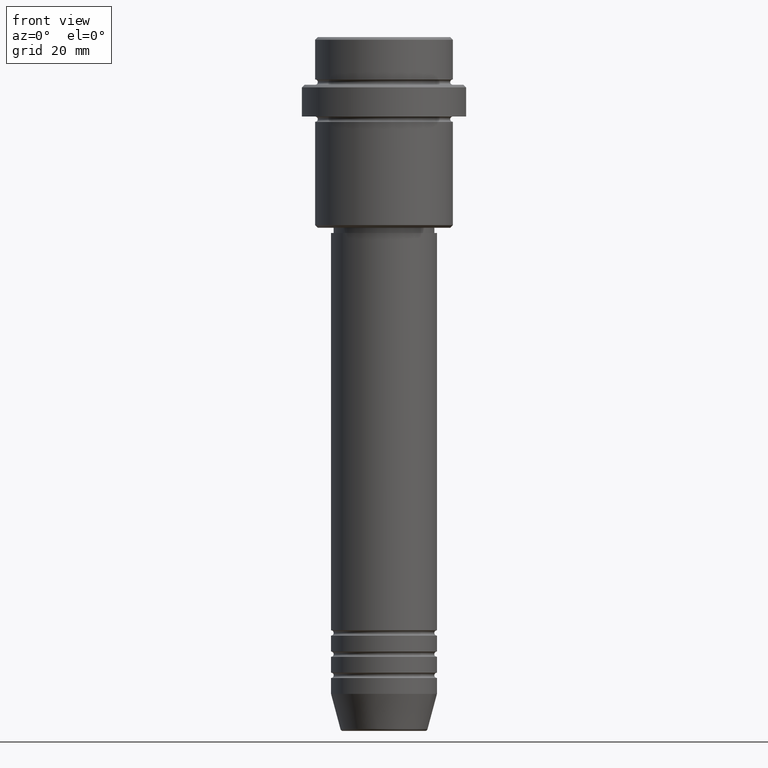
[diagram: clean part render]
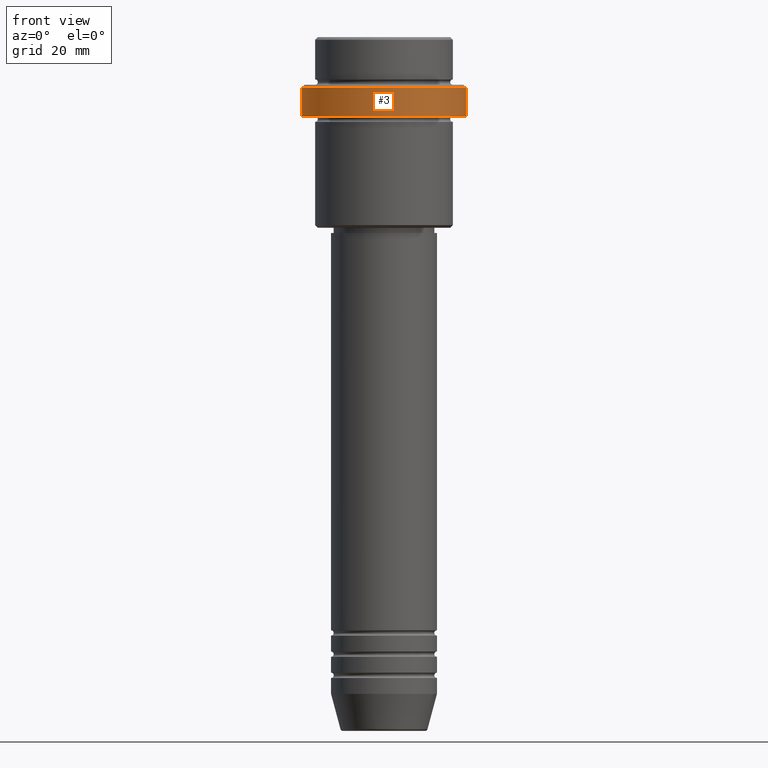
[diagram: same view with one face highlighted and labeled with its STEP entity id]
A machine part, front view. The second image highlights one B-rep face of the part: STEP entity #3.
In plain terms, the highlighted cylindrical surface (partial cylindrical patch) has radius 15.5 mm, axis along (-0, -0, 1).
Its self-contained STEP definition (entity closure, byte-faithful):
#3 = ADVANCED_FACE ( 'NONE', ( #1349 ), #270, .T. ) ;
#38 = ORIENTED_EDGE ( 'NONE', *, *, #1230, .T. ) ;
#104 = DIRECTION ( 'NONE',  ( 0.000000000000000000, 0.000000000000000000, -1.000000000000000000 ) ) ;
#121 = CARTESIAN_POINT ( 'NONE',  ( 0.000000000000000000, 0.000000000000000000, -15.00000000000000178 ) ) ;
#169 = DIRECTION ( 'NONE',  ( -0.000000000000000000, -0.000000000000000000, 1.000000000000000000 ) ) ;
#175 = CARTESIAN_POINT ( 'NONE',  ( 15.50000000000000000, 0.000000000000000000, 0.000000000000000000 ) ) ;
#183 = AXIS2_PLACEMENT_3D ( 'NONE', #121, #539, #952 ) ;
#197 = DIRECTION ( 'NONE',  ( -0.000000000000000000, -0.000000000000000000, 1.000000000000000000 ) ) ;
#209 = CARTESIAN_POINT ( 'NONE',  ( 0.000000000000000000, 0.000000000000000000, -9.499999999999971578 ) ) ;
#254 = ORIENTED_EDGE ( 'NONE', *, *, #1394, .T. ) ;
#270 = CYLINDRICAL_SURFACE ( 'NONE', #1174, 15.50000000000000000 ) ;
#296 = DIRECTION ( 'NONE',  ( -0.000000000000000000, -0.000000000000000000, 1.000000000000000000 ) ) ;
#325 = CIRCLE ( 'NONE', #736, 15.50000000000000000 ) ;
#403 = CARTESIAN_POINT ( 'NONE',  ( 15.50000000000000000, 0.000000000000000000, -9.499999999999971578 ) ) ;
#477 = VERTEX_POINT ( 'NONE', #1147 ) ;
#502 = EDGE_LOOP ( 'NONE', ( #1240, #1282, #38, #254 ) ) ;
#532 = CARTESIAN_POINT ( 'NONE',  ( -15.50000000000000000, 1.898202538678397557E-15, 0.000000000000000000 ) ) ;
#539 = DIRECTION ( 'NONE',  ( -0.000000000000000000, -0.000000000000000000, 1.000000000000000000 ) ) ;
#548 = DIRECTION ( 'NONE',  ( 1.000000000000000000, 0.000000000000000000, 0.000000000000000000 ) ) ;
#597 = DIRECTION ( 'NONE',  ( 1.000000000000000000, 0.000000000000000000, 0.000000000000000000 ) ) ;
#619 = CARTESIAN_POINT ( 'NONE',  ( -15.50000000000000000, 1.898202538678397557E-15, -9.499999999999971578 ) ) ;
#682 = VERTEX_POINT ( 'NONE', #403 ) ;
#685 = VERTEX_POINT ( 'NONE', #957 ) ;
#736 = AXIS2_PLACEMENT_3D ( 'NONE', #209, #104, #548 ) ;
#738 = CIRCLE ( 'NONE', #183, 15.50000000000000000 ) ;
#769 = EDGE_CURVE ( 'NONE', #477, #1033, #848, .T. ) ;
#848 = LINE ( 'NONE', #532, #1197 ) ;
#952 = DIRECTION ( 'NONE',  ( 1.000000000000000000, 0.000000000000000000, 0.000000000000000000 ) ) ;
#957 = CARTESIAN_POINT ( 'NONE',  ( 15.50000000000000000, 0.000000000000000000, -15.00000000000000178 ) ) ;
#972 = EDGE_CURVE ( 'NONE', #477, #685, #738, .T. ) ;
#1033 = VERTEX_POINT ( 'NONE', #619 ) ;
#1140 = CARTESIAN_POINT ( 'NONE',  ( 0.000000000000000000, 0.000000000000000000, 0.000000000000000000 ) ) ;
#1147 = CARTESIAN_POINT ( 'NONE',  ( -15.50000000000000000, 1.898202538678397557E-15, -15.00000000000000178 ) ) ;
#1174 = AXIS2_PLACEMENT_3D ( 'NONE', #1140, #169, #597 ) ;
#1197 = VECTOR ( 'NONE', #197, 1000.000000000000000 ) ;
#1230 = EDGE_CURVE ( 'NONE', #685, #682, #1280, .T. ) ;
#1240 = ORIENTED_EDGE ( 'NONE', *, *, #769, .F. ) ;
#1280 = LINE ( 'NONE', #175, #1393 ) ;
#1282 = ORIENTED_EDGE ( 'NONE', *, *, #972, .T. ) ;
#1349 = FACE_OUTER_BOUND ( 'NONE', #502, .T. ) ;
#1393 = VECTOR ( 'NONE', #296, 1000.000000000000000 ) ;
#1394 = EDGE_CURVE ( 'NONE', #682, #1033, #325, .T. ) ;